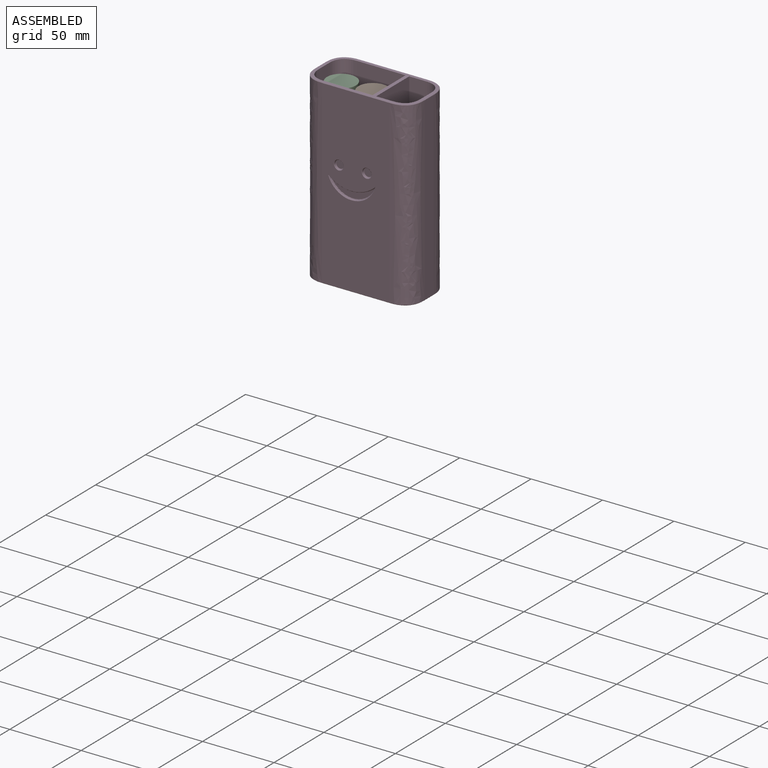
[diagram: assembled view]
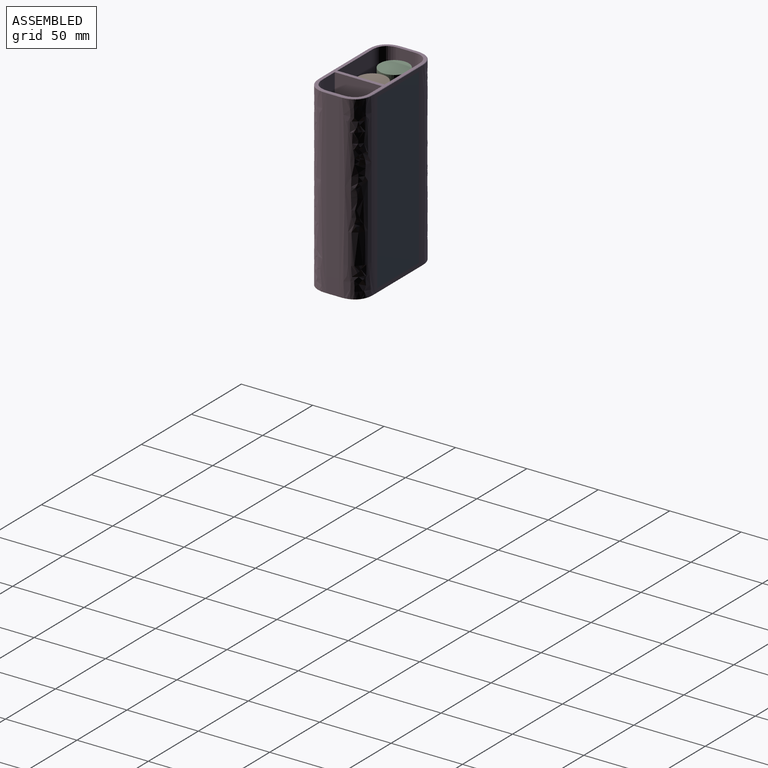
[diagram: assembled view, second angle]
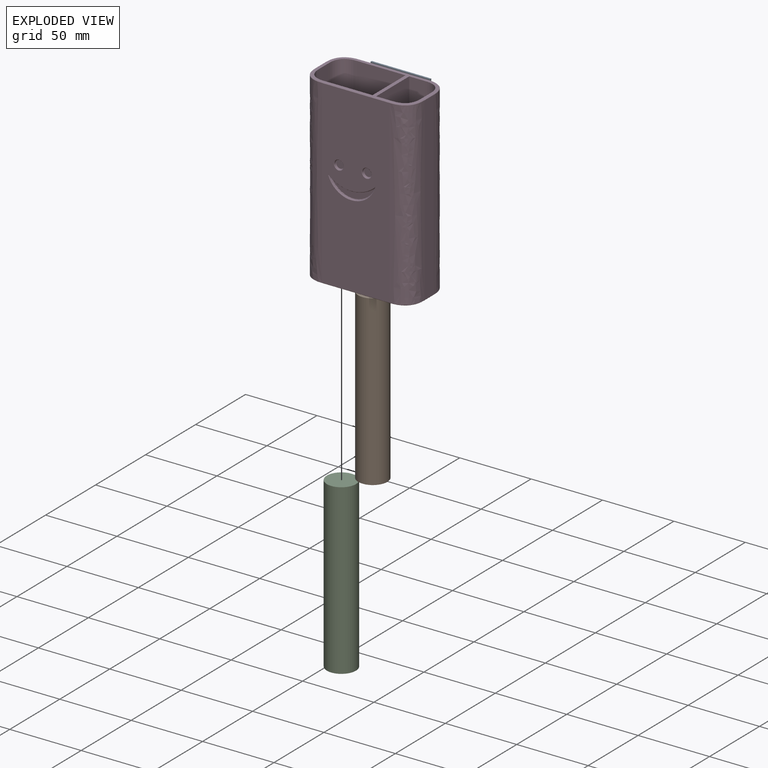
[diagram: exploded view]
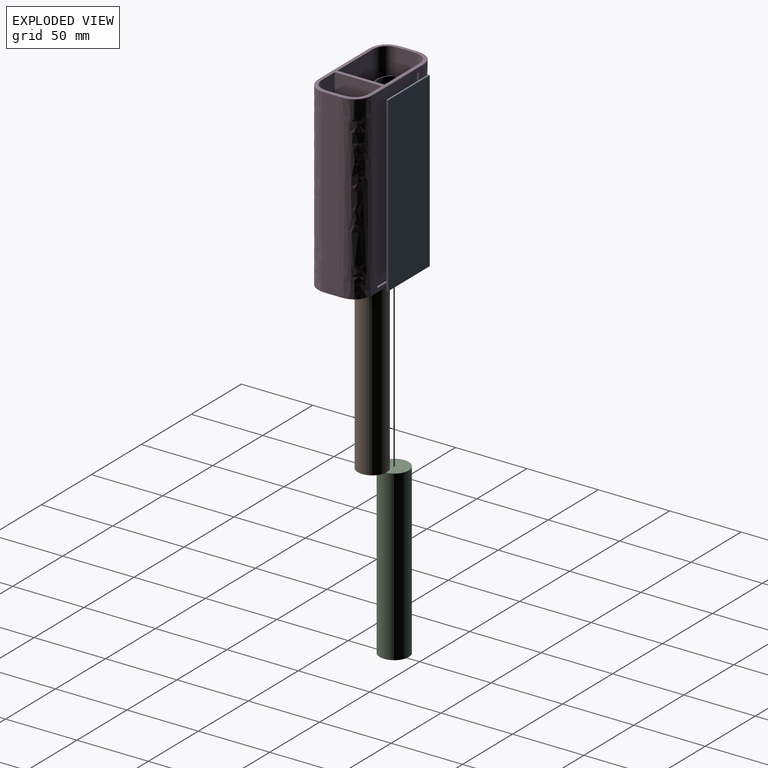
[diagram: exploded view, second angle]
ASSEMBLY  parts=4 mates=3
PART A: 6 faces, bbox 41.7x1.3x120.9 mm
  f0: plane 120.9x41.66mm, normal (0,1,0), area 5036.4mm2, adj f1,f2,f3,f4
  f1: plane 120.9x1.27mm, normal (-1,0,0), area 153.5mm2, adj f0,f2,f4,f5
  f2: plane 41.66x1.27mm, normal (0,0,1), area 52.9mm2, adj f0,f1,f3,f5
  f3: plane 120.9x1.27mm, normal (1,0,0), area 153.5mm2, adj f0,f2,f4,f5
  f4: plane 41.66x1.27mm, normal (0,0,-1), area 52.9mm2, adj f0,f1,f3,f5
  f5: plane 120.9x41.66mm, normal (0,-1,0), area 5036.4mm2, adj f1,f2,f3,f4
PART B: 3 faces, bbox 20.3x20.3x118.1 mm
  f0: cylinder r=10.16mm len=118.11mm, axis (0,0,-1), area 7539.8mm2, adj f1,f2
  f1: plane 20.32x20.32mm, normal (0,0,1), area 324.3mm2, adj f0
  f2: plane 20.32x20.32mm, normal (0,0,-1), area 324.3mm2, adj f0
PART C: 3 faces, bbox 20.3x20.3x118.1 mm
  f0: cylinder r=10.16mm len=118.11mm, axis (0,0,-1), area 7539.8mm2, adj f1,f2
  f1: plane 20.32x20.32mm, normal (0,0,1), area 324.3mm2, adj f0
  f2: plane 20.32x20.32mm, normal (0,0,-1), area 324.3mm2, adj f0
PART D: 78 faces, bbox 81.3x43.2x144.8 mm
  f0: plane 126.49x47.24mm, normal (0,-1,0), area 5747.7mm2, adj f11,f12,f27,f35,f65,f66,f67,f68
  f1: plane 45.8x33.3mm, normal (0,0,1), area 1374.7mm2, adj f2,f3,f13,f19,f21,f23,f40,f41
  f2: plane 124.46x33.59mm, normal (0,1,0), area 4180mm2, adj f1,f7,f21,f23
  f3: plane 124.46x33.59mm, normal (0,-1,0), area 4180mm2, adj f1,f7,f19,f23
  f4: plane 126.49x9.14mm, normal (-1,0,0), area 1156.6mm2, adj f10,f12,f24,f32
  f5: plane 126.49x9.14mm, normal (1,0,0), area 1156.6mm2, adj f9,f11,f31,f39
  f6: plane 126.49x47.24mm, normal (0,1,0), area 939.6mm2, adj f9,f10,f28,f36,f73,f74,f75,f76
  f7: plane 76.03x37.93mm, normal (0,0,1), area 521.9mm2, adj f2,f3,f13,f14,f15,f16,f18,f19
  f8: plane 76.03x37.93mm, normal (0,0,-1), area 2698.1mm2, adj f32,f33,f34,f35,f36,f37,f38,f39
  f9: bspline ~139.7x14.48mm, area 2978.2mm2, adj f5,f6,f30,f38
  f10: bspline ~139.7x14.48mm, area 2978.2mm2, adj f4,f6,f26,f34
  f11: bspline ~139.7x14.48mm, area 2978.2mm2, adj f0,f5,f29,f37
  f12: bspline ~139.7x14.48mm, area 2978.2mm2, adj f0,f4,f25,f33
  f13: plane 124.46x9.14mm, normal (1,0,0), area 1138.1mm2, adj f1,f7,f19,f21
  f14: plane 124.46x11.1mm, normal (0,1,0), area 1381.3mm2, adj f7,f17,f20,f22
  f15: plane 124.46x9.14mm, normal (-1,0,0), area 1138.1mm2, adj f7,f17,f18,f20
  f16: plane 124.46x11.1mm, normal (0,-1,0), area 1381.3mm2, adj f7,f17,f18,f22
  f17: plane 33.3x23.32mm, normal (0,0,1), area 716.9mm2, adj f14,f15,f16,f18,f20,f22
  f18: offset ~144.78x19.56mm, area 2433.8mm2, adj f7,f15,f16,f17
  f19: offset ~144.78x19.56mm, area 2433.8mm2, adj f1,f3,f7,f13
  f20: offset ~144.78x19.56mm, area 2433.8mm2, adj f7,f14,f15,f17
  f21: offset ~144.78x19.56mm, area 2433.8mm2, adj f1,f2,f7,f13
  f22: plane 124.46x33.02mm, normal (1,0,0), area 4109.7mm2, adj f7,f14,f16,f17
  f23: plane 124.46x33.02mm, normal (-1,0,0), area 4109.7mm2, adj f1,f2,f3,f7
  f24: plane 9.14x0.25mm, normal (-0.71,0,0.71), area 3.3mm2, adj f4,f7,f25,f26
  f25: bspline ~14.48x14.48mm, area 8.4mm2, adj f7,f12,f24,f27
  f26: bspline ~14.48x14.48mm, area 8.4mm2, adj f7,f10,f24,f28
  f27: plane 47.24x0.25mm, normal (0,-0.71,0.71), area 17mm2, adj f0,f7,f25,f29
  f28: plane 47.24x0.25mm, normal (0,0.71,0.71), area 17mm2, adj f6,f7,f26,f30
  f29: bspline ~14.48x14.48mm, area 8.4mm2, adj f7,f11,f27,f31
  f30: bspline ~14.48x14.48mm, area 8.4mm2, adj f7,f9,f28,f31
  f31: plane 9.14x0.25mm, normal (0.71,0,0.71), area 3.3mm2, adj f5,f7,f29,f30
  f32: plane 9.14x0.25mm, normal (-0.71,0,-0.71), area 3.3mm2, adj f4,f8,f33,f34
  f33: bspline ~14.48x14.48mm, area 8.4mm2, adj f8,f12,f32,f35
  f34: bspline ~14.48x14.48mm, area 8.4mm2, adj f8,f10,f32,f36
  f35: plane 47.24x0.25mm, normal (0,-0.71,-0.71), area 17mm2, adj f0,f8,f33,f37
  f36: plane 47.24x0.25mm, normal (0,0.71,-0.71), area 17mm2, adj f6,f8,f34,f38
  f37: bspline ~14.48x14.48mm, area 8.4mm2, adj f8,f11,f35,f39
  f38: bspline ~14.48x14.48mm, area 8.4mm2, adj f8,f9,f36,f39
  f39: plane 9.14x0.25mm, normal (0.71,0,-0.71), area 3.3mm2, adj f5,f8,f37,f38
  f40: plane 107.44x1.44mm, normal (1,0,0), area 154.2mm2, adj f1,f41,f47,f48
  f41: cylinder r=12.36mm len=107.44mm, axis (0,0,-1), area 2329.1mm2, adj f1,f40,f42,f48
  f42: plane 107.44x3mm, normal (0,1,0), area 322.2mm2, adj f1,f41,f43,f48
  f43: cylinder r=12.36mm len=107.44mm, axis (0,0,-1), area 2329.1mm2, adj f1,f42,f44,f48
  f44: plane 107.44x1.44mm, normal (-1,0,0), area 154.2mm2, adj f1,f43,f45,f48
  f45: cylinder r=11.49mm len=107.44mm, axis (0,0,-1), area 2403.6mm2, adj f1,f44,f46,f48
  f46: plane 107.44x3mm, normal (0,-1,0), area 322.2mm2, adj f1,f45,f47,f48
  f47: cylinder r=11.49mm len=107.44mm, axis (0,0,-1), area 2403.6mm2, adj f1,f40,f46,f48
  f48: plane 41.01x5.89mm, normal (0,0,1), area 42.3mm2, adj f40,f41,f42,f43,f44,f45,f46,f47
  f49: cylinder r=11.49mm len=107.44mm, axis (0,0,-1), area 2403.6mm2, adj f1,f50,f56,f57
  f50: plane 107.44x1.44mm, normal (-1,0,0), area 154.2mm2, adj f1,f49,f51,f57
  f51: cylinder r=12.36mm len=107.44mm, axis (0,0,-1), area 2329.1mm2, adj f1,f50,f52,f57
  f52: plane 107.44x3mm, normal (0,-1,0), area 322.2mm2, adj f1,f51,f53,f57
  f53: cylinder r=12.36mm len=107.44mm, axis (0,0,-1), area 2329.1mm2, adj f1,f52,f54,f57
  f54: plane 107.44x1.44mm, normal (1,0,0), area 154.2mm2, adj f1,f53,f55,f57
  f55: cylinder r=11.49mm len=107.44mm, axis (0,0,-1), area 2403.6mm2, adj f1,f54,f56,f57
  f56: plane 107.44x3mm, normal (0,1,0), area 322.2mm2, adj f1,f49,f55,f57
  f57: plane 41.01x5.89mm, normal (0,0,1), area 42.3mm2, adj f49,f50,f51,f52,f53,f54,f55,f56
  f58: cylinder r=3.18mm len=6.37mm, axis (0,-1,0), area 15.6mm2, adj f66,f72
  f59: plane 5.39x5.39mm, normal (0,-1,0), area 22.8mm2, adj f72
  f60: cylinder r=3.18mm len=6.37mm, axis (0,-1,0), area 15.6mm2, adj f65,f71
  f61: plane 5.39x5.39mm, normal (0,-1,0), area 22.8mm2, adj f71
  f62: cylinder r=24.22mm len=32.12mm, axis (0,-1,0), area 27.4mm2, adj f63,f67,f69
  f63: cylinder r=17.01mm len=32.12mm, axis (0,-1,0), area 32.8mm2, adj f62,f68,f70
  f64: plane 29.73x9.72mm, normal (0,-1,0), area 98mm2, adj f69,f70
  f65: cone r=3.18mm half-angle=45deg, axis (0,-1,0), area 7.5mm2, adj f0,f60
  f66: cone r=3.18mm half-angle=45deg, axis (0,-1,0), area 7.5mm2, adj f0,f58
  f67: cone r=23.97mm half-angle=45deg, axis (0,1,0), area 12.9mm2, adj f0,f62,f68
  f68: cone r=17.01mm half-angle=45deg, axis (0,-1,0), area 15.6mm2, adj f0,f63,f67
  f69: torus R=24.72mm, axis (0,-1,0), area 25.8mm2, adj f62,f64,f70
  f70: torus R=16.52mm, axis (0,-1,0), area 30.6mm2, adj f63,f64,f69
  f71: torus R=2.69mm, axis (0,-1,0), area 14.6mm2, adj f60,f61
  f72: torus R=2.69mm, axis (0,-1,0), area 14.6mm2, adj f58,f59
  f73: plane 120.9x1.27mm, normal (1,0,0), area 153.5mm2, adj f6,f74,f76,f77
  f74: plane 41.66x1.27mm, normal (0,0,-1), area 52.9mm2, adj f6,f73,f75,f77
  f75: plane 120.9x1.27mm, normal (-1,0,0), area 153.5mm2, adj f6,f74,f76,f77
  f76: plane 41.66x1.27mm, normal (0,0,1), area 52.9mm2, adj f6,f73,f75,f77
  f77: plane 120.9x41.66mm, normal (0,1,0), area 5036.4mm2, adj f73,f74,f75,f76
PLACE A t=(-38.08,-18.19,-63.29)mm
PLACE B t=(-16.61,-18.19,-63.29)mm
PLACE C t=(-59.83,-18.19,-63.29)mm
PLACE D t=(-38.08,-18.19,-63.29)mm
MATE fastened A.f5 <-> D.f77  axis (0,-1,0) through (0.02,18.64,0.21)mm
MATE fastened C.f0 <-> D.f43  axis (0,0,-1) through (-23.38,0.86,-60.75)mm
MATE fastened B.f0 <-> D.f41  axis (0,0,-1) through (-1.37,0.86,-60.75)mm
